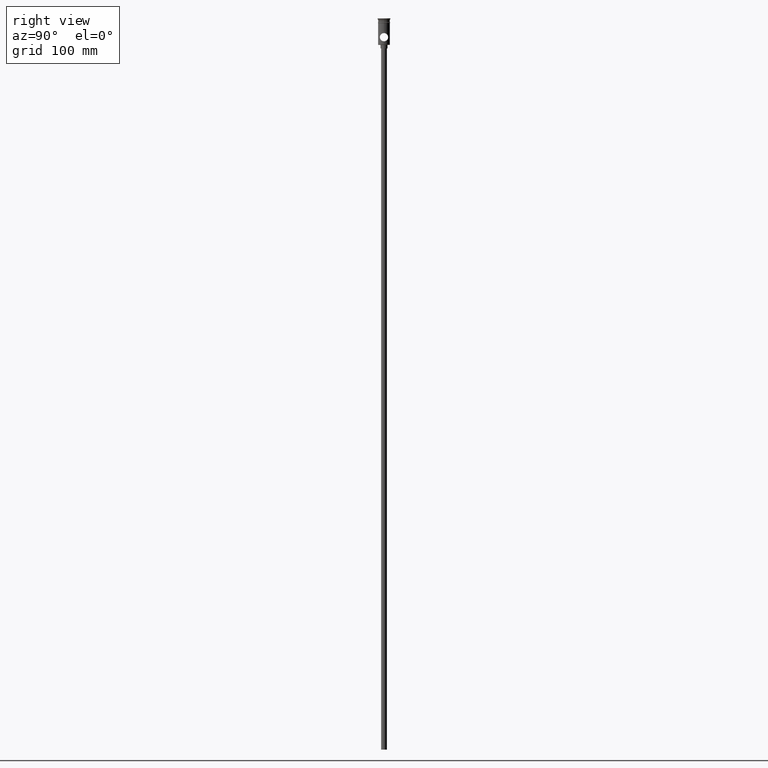
[diagram: clean part render]
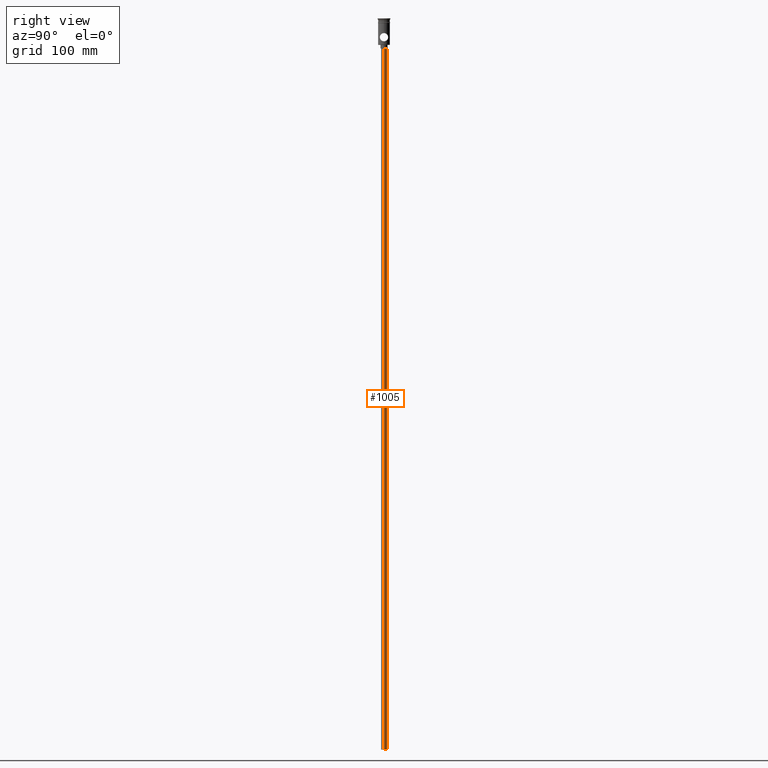
[diagram: same view with one face highlighted and labeled with its STEP entity id]
A machine part, right view. The second image highlights one B-rep face of the part: STEP entity #1005.
In plain terms, the highlighted cylindrical surface (edge-blend (fillet) strip) has radius 2.5 mm, axis along (-0, -0, 1).
Its self-contained STEP definition (entity closure, byte-faithful):
#7 = VERTEX_POINT ( 'NONE', #707 ) ;
#14 = CARTESIAN_POINT ( 'NONE',  ( 2.500000000000000000, 0.000000000000000000, -622.4999999999998863 ) ) ;
#19 = CARTESIAN_POINT ( 'NONE',  ( 0.000000000000000000, 0.000000000000000000, -25.50000000000000000 ) ) ;
#20 = AXIS2_PLACEMENT_3D ( 'NONE', #19, #896, #348 ) ;
#28 = DIRECTION ( 'NONE',  ( -0.000000000000000000, -0.000000000000000000, 1.000000000000000000 ) ) ;
#108 = VECTOR ( 'NONE', #550, 1000.000000000000000 ) ;
#115 = CIRCLE ( 'NONE', #420, 2.500000000000000000 ) ;
#188 = EDGE_CURVE ( 'NONE', #822, #1217, #1102, .T. ) ;
#348 = DIRECTION ( 'NONE',  ( -1.000000000000000000, 0.000000000000000000, 0.000000000000000000 ) ) ;
#356 = CARTESIAN_POINT ( 'NONE',  ( 2.500000000000000000, 0.000000000000000000, -25.50000000000000000 ) ) ;
#380 = ORIENTED_EDGE ( 'NONE', *, *, #565, .T. ) ;
#415 = ORIENTED_EDGE ( 'NONE', *, *, #188, .F. ) ;
#420 = AXIS2_PLACEMENT_3D ( 'NONE', #549, #855, #537 ) ;
#429 = CYLINDRICAL_SURFACE ( 'NONE', #1246, 2.500000000000000000 ) ;
#434 = CARTESIAN_POINT ( 'NONE',  ( 2.500000000000000000, 0.000000000000000000, -622.4999999999998863 ) ) ;
#537 = DIRECTION ( 'NONE',  ( -1.000000000000000000, 0.000000000000000000, 0.000000000000000000 ) ) ;
#549 = CARTESIAN_POINT ( 'NONE',  ( 0.000000000000000000, 0.000000000000000000, -622.4999999999998863 ) ) ;
#550 = DIRECTION ( 'NONE',  ( -0.000000000000000000, -0.000000000000000000, 1.000000000000000000 ) ) ;
#565 = EDGE_CURVE ( 'NONE', #601, #7, #1135, .T. ) ;
#601 = VERTEX_POINT ( 'NONE', #1404 ) ;
#645 = FACE_OUTER_BOUND ( 'NONE', #734, .T. ) ;
#694 = DIRECTION ( 'NONE',  ( 1.000000000000000000, 0.000000000000000000, 0.000000000000000000 ) ) ;
#707 = CARTESIAN_POINT ( 'NONE',  ( -2.500000000000000000, 3.061616997868383141E-16, -25.50000000000000000 ) ) ;
#734 = EDGE_LOOP ( 'NONE', ( #1296, #380, #1364, #415 ) ) ;
#762 = DIRECTION ( 'NONE',  ( -0.000000000000000000, -0.000000000000000000, 1.000000000000000000 ) ) ;
#822 = VERTEX_POINT ( 'NONE', #14 ) ;
#855 = DIRECTION ( 'NONE',  ( 0.000000000000000000, 0.000000000000000000, -1.000000000000000000 ) ) ;
#896 = DIRECTION ( 'NONE',  ( 0.000000000000000000, 0.000000000000000000, -1.000000000000000000 ) ) ;
#907 = CARTESIAN_POINT ( 'NONE',  ( -2.500000000000000000, 3.061616997868383141E-16, -622.4999999999998863 ) ) ;
#1005 = ADVANCED_FACE ( 'NONE', ( #645 ), #429, .T. ) ;
#1079 = CARTESIAN_POINT ( 'NONE',  ( 0.000000000000000000, 0.000000000000000000, -622.4999999999998863 ) ) ;
#1102 = LINE ( 'NONE', #434, #108 ) ;
#1135 = LINE ( 'NONE', #907, #1312 ) ;
#1217 = VERTEX_POINT ( 'NONE', #356 ) ;
#1227 = EDGE_CURVE ( 'NONE', #7, #1217, #1314, .T. ) ;
#1246 = AXIS2_PLACEMENT_3D ( 'NONE', #1079, #762, #694 ) ;
#1296 = ORIENTED_EDGE ( 'NONE', *, *, #1452, .F. ) ;
#1312 = VECTOR ( 'NONE', #28, 1000.000000000000000 ) ;
#1314 = CIRCLE ( 'NONE', #20, 2.500000000000000000 ) ;
#1364 = ORIENTED_EDGE ( 'NONE', *, *, #1227, .T. ) ;
#1404 = CARTESIAN_POINT ( 'NONE',  ( -2.500000000000000000, 3.061616997868383141E-16, -622.4999999999998863 ) ) ;
#1452 = EDGE_CURVE ( 'NONE', #601, #822, #115, .T. ) ;